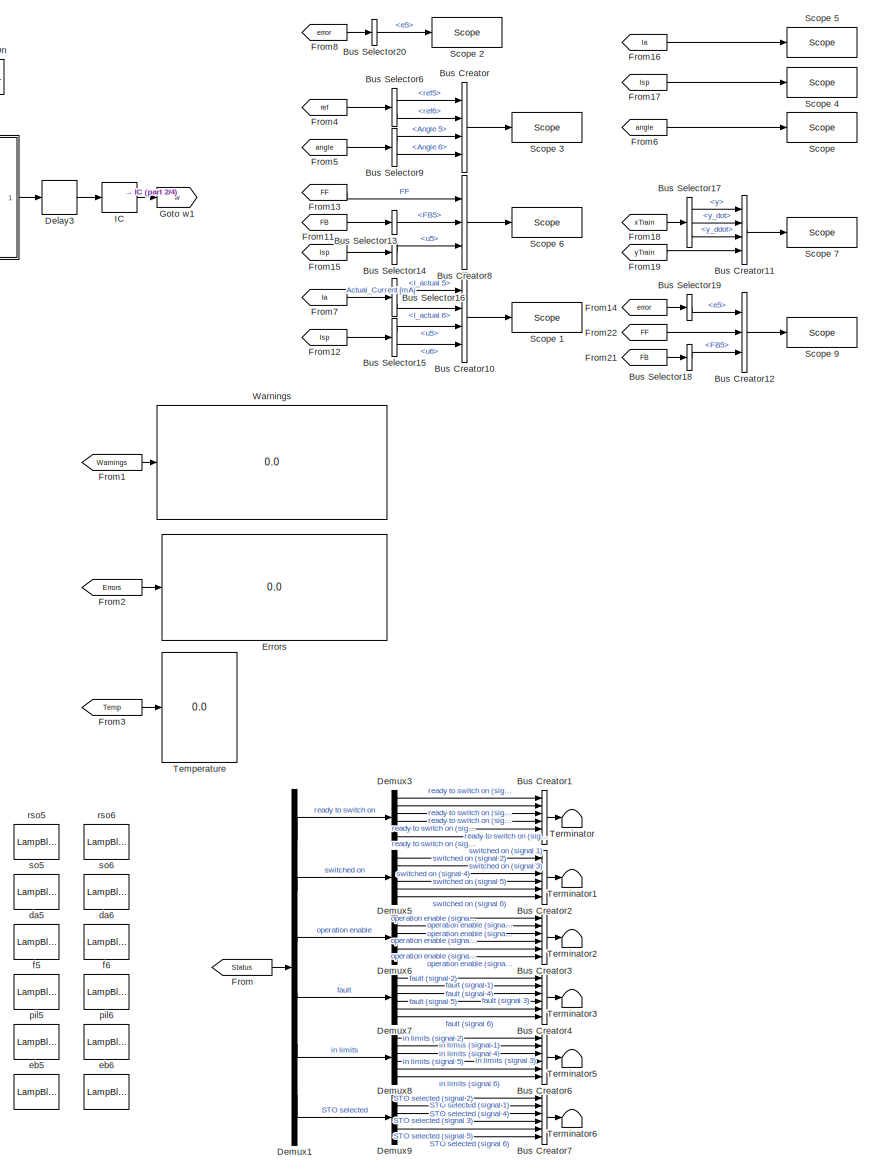
[diagram: root canvas - part 1/4, right side, full height]
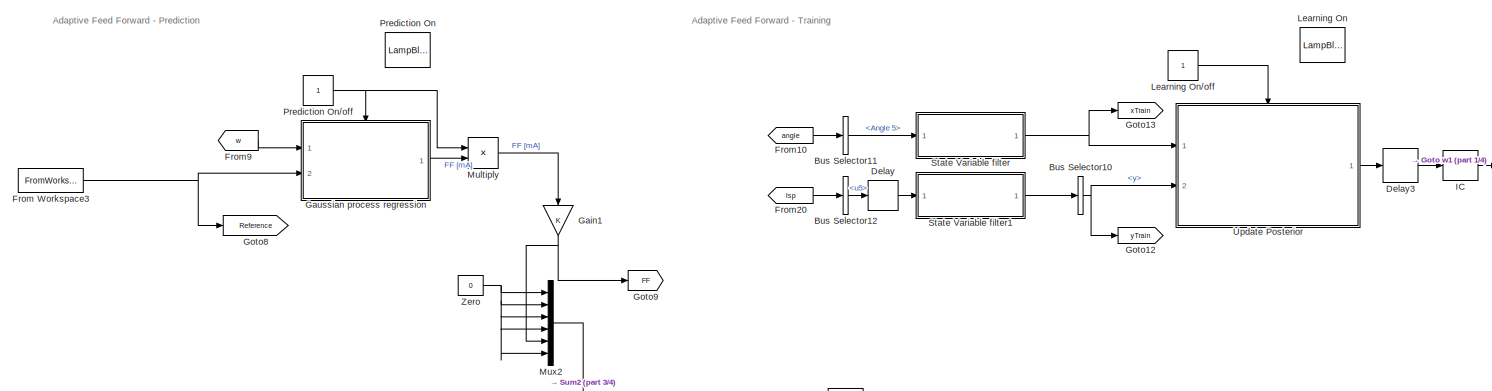
[diagram: root canvas - part 2/4, top center region]
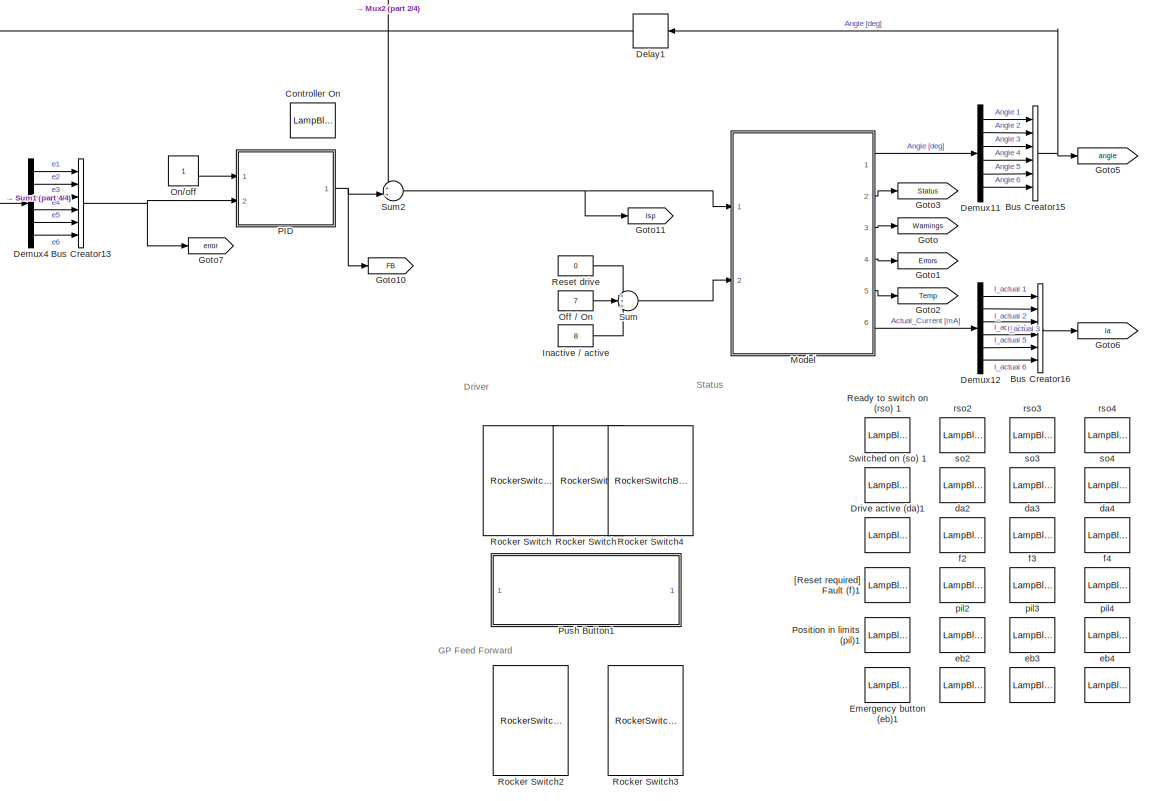
[diagram: root canvas - part 3/4, bottom center region]
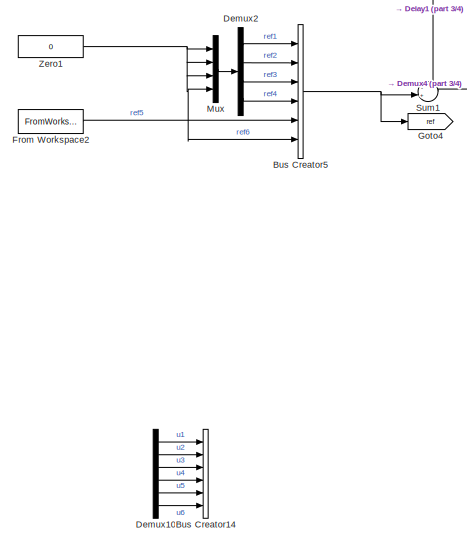
[diagram: root canvas - part 4/4, middle left region]
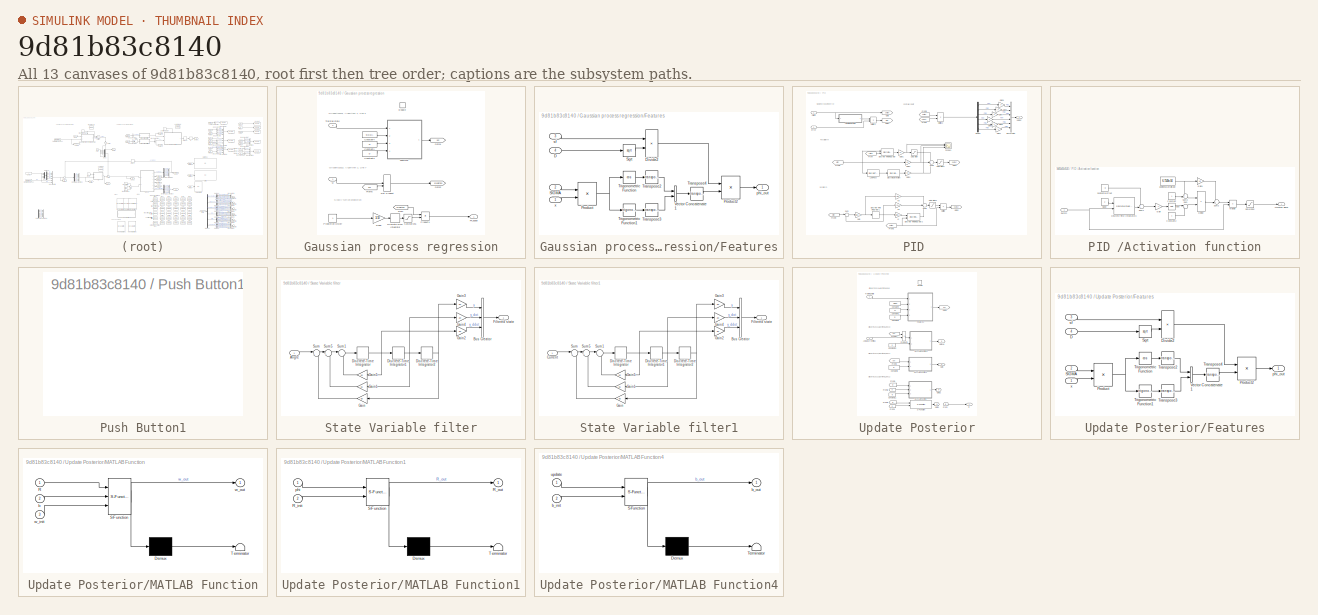
[diagram: thumbnail index - all 13 canvases of the model, root first then tree order]
MODEL slx_9d81b83c8140
KIND model
CONFIG AbsTol = auto
CONFIG EnableMultiTasking = off
CONFIG FixedStep = ts
CONFIG InitFcn = Ts = 0.001;
CONFIG MaxStep = auto
CONFIG MinStep = auto
CONFIG PreLoadFcn = Ts = 0.001;
CONFIG RelTol = 1e-3
CONFIG SampleTimeConstraint = Unconstrained
CONFIG Solver = FixedStepDiscrete
CONFIG SolverName = FixedStepDiscrete
CONFIG StartTime = 0.0
CONFIG StopTime = t_end
BLOCK [LampBlock]  da2 
  LabelPosition = Hide
  WebBlockId = 1372
BLOCK [LampBlock]  da4
  LabelPosition = Hide
  WebBlockId = 1373
BLOCK [LampBlock]  da5
  LabelPosition = Hide
  WebBlockId = 1374
BLOCK [LampBlock]  da6
  LabelPosition = Hide
  WebBlockId = 1375
BLOCK [LampBlock]  eb4
  LabelPosition = Hide
  WebBlockId = 1402
BLOCK [LampBlock]  eb5
  LabelPosition = Hide
  WebBlockId = 1403
BLOCK [LampBlock]  eb6
  LabelPosition = Hide
  WebBlockId = 1404
BLOCK [LampBlock]  f4
  LabelPosition = Hide
  WebBlockId = 1379
BLOCK [LampBlock]  f5
  LabelPosition = Hide
  WebBlockId = 1380
BLOCK [LampBlock]  f6
  LabelPosition = Hide
  WebBlockId = 1381
BLOCK [LampBlock]  pil4
  LabelPosition = Hide
  WebBlockId = 1397
BLOCK [LampBlock]  pil5
  LabelPosition = Hide
  WebBlockId = 1398
BLOCK [LampBlock]  pil6
  LabelPosition = Hide
  WebBlockId = 1399
BLOCK [LampBlock]  rso4
  LabelPosition = Hide
  WebBlockId = 1325
BLOCK [LampBlock]  so2 
  LabelPosition = Hide
  WebBlockId = 1336
BLOCK [LampBlock]  so4
  LabelPosition = Hide
  WebBlockId = 1333
BLOCK [LampBlock]  so5
  LabelPosition = Hide
  WebBlockId = 1334
BLOCK [LampBlock]  so6
  LabelPosition = Hide
  WebBlockId = 1335
BLOCK [BusCreator] Bus Creator
  DisplayOption = bar
  InheritFromInputs = on
  Inputs = 4
  Ports = [4, 1]
BLOCK [BusCreator] Bus Creator1
  DisplayOption = bar
  InheritFromInputs = on
  Inputs = 6
  Ports = [6, 1]
BLOCK [BusCreator] Bus Creator10
  DisplayOption = bar
  InheritFromInputs = on
  Inputs = 4
  Ports = [4, 1]
BLOCK [BusCreator] Bus Creator11
  DisplayOption = bar
  InheritFromInputs = on
  Inputs = 4
  Ports = [4, 1]
BLOCK [BusCreator] Bus Creator12
  DisplayOption = bar
  InheritFromInputs = on
  Inputs = 3
  Ports = [3, 1]
BLOCK [BusCreator] Bus Creator13
  DisplayOption = bar
  InheritFromInputs = on
  Inputs = 6
  Ports = [6, 1]
BLOCK [BusCreator] Bus Creator14
  DisplayOption = bar
  InheritFromInputs = on
  Inputs = 6
  Ports = [6, 1]
BLOCK [BusCreator] Bus Creator15
  DisplayOption = bar
  InheritFromInputs = on
  Inputs = 6
  Ports = [6, 1]
BLOCK [BusCreator] Bus Creator16
  DisplayOption = bar
  InheritFromInputs = on
  Inputs = 6
  Ports = [6, 1]
BLOCK [BusCreator] Bus Creator2
  DisplayOption = bar
  InheritFromInputs = on
  Inputs = 6
  Ports = [6, 1]
BLOCK [BusCreator] Bus Creator3
  DisplayOption = bar
  InheritFromInputs = on
  Inputs = 6
  Ports = [6, 1]
BLOCK [BusCreator] Bus Creator4
  DisplayOption = bar
  InheritFromInputs = on
  Inputs = 6
  Ports = [6, 1]
BLOCK [BusCreator] Bus Creator5
  DisplayOption = bar
  InheritFromInputs = on
  Inputs = 6
  Ports = [6, 1]
BLOCK [BusCreator] Bus Creator6
  DisplayOption = bar
  InheritFromInputs = on
  Inputs = 6
  Ports = [6, 1]
BLOCK [BusCreator] Bus Creator7
  DisplayOption = bar
  InheritFromInputs = on
  Inputs = 6
  Ports = [6, 1]
BLOCK [BusCreator] Bus Creator8
  DisplayOption = bar
  InheritFromInputs = on
  Inputs = 3
  Ports = [3, 1]
BLOCK [BusSelector] Bus Selector10
  OutputAsBus = off
  OutputSignals = y
  Ports = [1, 1]
BLOCK [BusSelector] Bus Selector11
  OutputAsBus = off
  OutputSignals = Angle 5
  Ports = [1, 1]
BLOCK [BusSelector] Bus Selector12
  OutputAsBus = off
  OutputSignals = u5
  Ports = [1, 1]
BLOCK [BusSelector] Bus Selector13
  OutputAsBus = off
  OutputSignals = FB5
  Ports = [1, 1]
BLOCK [BusSelector] Bus Selector14
  OutputAsBus = off
  OutputSignals = u5
  Ports = [1, 1]
BLOCK [BusSelector] Bus Selector15
  OutputAsBus = off
  OutputSignals = u5,u6
  Ports = [1, 2]
BLOCK [BusSelector] Bus Selector16
  OutputAsBus = off
  OutputSignals = I_actual 5,I_actual 6
  Ports = [1, 2]
BLOCK [BusSelector] Bus Selector17
  OutputAsBus = off
  OutputSignals = y,y_dot,y_ddot
  Ports = [1, 3]
BLOCK [BusSelector] Bus Selector18
  OutputAsBus = off
  OutputSignals = FB5
  Ports = [1, 1]
BLOCK [BusSelector] Bus Selector19
  OutputAsBus = off
  OutputSignals = e5
  Ports = [1, 1]
BLOCK [BusSelector] Bus Selector20
  OutputAsBus = off
  OutputSignals = e5
  Ports = [1, 1]
BLOCK [BusSelector] Bus Selector6
  OutputAsBus = off
  OutputSignals = ref5,ref6
  Ports = [1, 2]
BLOCK [BusSelector] Bus Selector9
  OutputAsBus = off
  OutputSignals = Angle 5,Angle 6
  Ports = [1, 2]
BLOCK [LampBlock] Controller On 
  LabelPosition = Hide
  WebBlockId = 1976
BLOCK [Delay] Delay
  DelayLength = 3
  InputPortMap = u0
  Ports = [1, 1]
BLOCK [Delay] Delay1
  DelayLength = 1
  InputPortMap = u0
  Ports = [1, 1]
BLOCK [Delay] Delay3
  DelayLength = 1
  InitialCondition = 0
  InputPortMap = u0
  Ports = [1, 1]
BLOCK [Demux] Demux1
  DisplayOption = bar
  Outputs = 6
  Ports = [1, 6]
BLOCK [Demux] Demux10
  DisplayOption = bar
  Outputs = 6
  Ports = [1, 6]
BLOCK [Demux] Demux11
  DisplayOption = bar
  Outputs = 6
  Ports = [1, 6]
BLOCK [Demux] Demux12
  DisplayOption = bar
  Outputs = 6
  Ports = [1, 6]
BLOCK [Demux] Demux2
  DisplayOption = bar
  Ports = [1, 4]
BLOCK [Demux] Demux3
  DisplayOption = bar
  Outputs = 6
  Ports = [1, 6]
BLOCK [Demux] Demux4
  DisplayOption = bar
  Outputs = 6
  Ports = [1, 6]
BLOCK [Demux] Demux5
  DisplayOption = bar
  Outputs = 6
  Ports = [1, 6]
BLOCK [Demux] Demux6
  DisplayOption = bar
  Outputs = 6
  Ports = [1, 6]
BLOCK [Demux] Demux7
  DisplayOption = bar
  Outputs = 6
  Ports = [1, 6]
BLOCK [Demux] Demux8
  DisplayOption = bar
  Outputs = 6
  Ports = [1, 6]
BLOCK [Demux] Demux9
  DisplayOption = bar
  Outputs = 6
  Ports = [1, 6]
BLOCK [LampBlock] Drive active (da)1
  LabelPosition = Hide
  WebBlockId = 1376
BLOCK [LampBlock] Emergency button (eb)1
  LabelPosition = Hide
  WebBlockId = 1405
BLOCK [Display] Errors
  Decimation = 25
  Ports = [1]
BLOCK [From] From
  GotoTag = Status
BLOCK [FromWorkspace] From Workspace2
  OutputAfterFinalValue = Setting to zero
  SampleTime = ts
  VariableName = skewSine
  ZeroCross = on
BLOCK [FromWorkspace] From Workspace3
  OutputAfterFinalValue = Setting to zero
  SampleTime = ts
  VariableName = skewSineFF
  ZeroCross = on
BLOCK [From] From1
  GotoTag = Warnings
BLOCK [From] From10
  GotoTag = angle
BLOCK [From] From11
  GotoTag = FB
BLOCK [From] From12
  GotoTag = Isp
BLOCK [From] From13
  GotoTag = FF
BLOCK [From] From14
  GotoTag = error
BLOCK [From] From15
  GotoTag = Isp
BLOCK [From] From16
  Commented = on
  GotoTag = Ia
BLOCK [From] From17
  Commented = on
  GotoTag = Isp
BLOCK [From] From18
  GotoTag = xTrain
BLOCK [From] From19
  GotoTag = yTrain
BLOCK [From] From2
  GotoTag = Errors
BLOCK [From] From20
  GotoTag = Isp
BLOCK [From] From21
  GotoTag = FB
BLOCK [From] From22
  GotoTag = FF
BLOCK [From] From3
  GotoTag = Temp
BLOCK [From] From4
  GotoTag = ref
BLOCK [From] From5
  GotoTag = angle
BLOCK [From] From6
  Commented = on
  GotoTag = angle
BLOCK [From] From7
  GotoTag = Ia
BLOCK [From] From8
  GotoTag = error
BLOCK [From] From9
  GotoTag = w
BLOCK [Gain] Gain1
  OutDataTypeStr = Inherit: Inherit via internal rule
  ParamDataTypeStr = Inherit: Inherit via internal rule
  SaturateOnIntegerOverflow = off
BLOCK [SubSystem] Gaussian process regression
  Ports = [2, 1, 1]
  RequestExecContextInheritance = off
BLOCK [Constant] Gaussian process regression/Constant1
  Value = sf
  VectorParams1D = off
BLOCK [Constant] Gaussian process regression/Constant3
  Value = D
  VectorParams1D = off
BLOCK [Constant] Gaussian process regression/Constant4
  Value = SIGMA
  VectorParams1D = off
BLOCK [DiscreteIntegrator] Gaussian process regression/Discrete-Time Integrator
  ICPrevOutput = DiscIntNeverNeededParam
  ICPrevScaledInput = DiscIntNeverNeededParam
  InitialConditionSetting = Auto
  Ports = [1, 1]
  SampleTime = -1
BLOCK [DotProduct] Gaussian process regression/Dot Product
  InputSameDT = off
  OutDataTypeStr = Inherit: Inherit via internal rule
BLOCK [EnablePort] Gaussian process regression/Enable
  Ports = []
  StatesWhenEnabling = reset
BLOCK [Outport] Gaussian process regression/FF_adapt
  IconDisplay = Port number
  SampleTime = ts
BLOCK [SubSystem] Gaussian process regression/Features
  Ports = [4, 1]
  RequestExecContextInheritance = off
BLOCK [Inport] Gaussian process regression/Features/D
  IconDisplay = Port number
  Port = 4
BLOCK [Product] Gaussian process regression/Features/Divide2
  InputSameDT = off
  Inputs = */
  OutDataTypeStr = Inherit: Inherit via internal rule
  Ports = [2, 1]
  RndMeth = Floor
  SaturateOnIntegerOverflow = off
BLOCK [Product] Gaussian process regression/Features/Product
  InputSameDT = off
  Multiplication = Matrix(*)
  OutDataTypeStr = Inherit: Inherit via internal rule
  Ports = [2, 1]
  RndMeth = Floor
  SaturateOnIntegerOverflow = off
BLOCK [Product] Gaussian process regression/Features/Product2
  InputSameDT = off
  OutDataTypeStr = Inherit: Inherit via internal rule
  Ports = [2, 1]
  RndMeth = Floor
  SaturateOnIntegerOverflow = off
BLOCK [Inport] Gaussian process regression/Features/SIGMA
  IconDisplay = Port number
  Port = 2
BLOCK [Sqrt] Gaussian process regression/Features/Sqrt
BLOCK [Math] Gaussian process regression/Features/Transpose2
  Operator = transpose
  Ports = [1, 1]
BLOCK [Math] Gaussian process regression/Features/Transpose3
  Operator = transpose
  Ports = [1, 1]
BLOCK [Math] Gaussian process regression/Features/Transpose4
  Operator = transpose
  Ports = [1, 1]
BLOCK [Trigonometry] Gaussian process regression/Features/Trigonometric Function
  Operator = cos
  Ports = [1, 1]
BLOCK [Trigonometry] Gaussian process regression/Features/Trigonometric Function1
  Ports = [1, 1]
BLOCK [Concatenate] Gaussian process regression/Features/Vector Concatenate1
  Ports = [2, 1]
BLOCK [Outport] Gaussian process regression/Features/phi_out
  IconDisplay = Port number
BLOCK [Inport] Gaussian process regression/Features/sf
  IconDisplay = Port number
  Port = 3
BLOCK [Inport] Gaussian process regression/Features/x
  IconDisplay = Port number
BLOCK [From] Gaussian process regression/From
  GotoTag = prediction
BLOCK [From] Gaussian process regression/From5
  GotoTag = phi
BLOCK [Goto] Gaussian process regression/Goto1
  GotoTag = phi
BLOCK [Goto] Gaussian process regression/Goto2
  GotoTag = prediction
BLOCK [Constant] Gaussian process regression/Prediction On//off
BLOCK [Product] Gaussian process regression/Product1
  InputSameDT = off
  OutDataTypeStr = Inherit: Inherit via internal rule
  Ports = [2, 1]
  RndMeth = Floor
  SaturateOnIntegerOverflow = off
BLOCK [Saturate] Gaussian process regression/Saturation1
  InputPortMap = u0
  LowerLimit = 0
  Ports = [1, 1]
  UpperLimit = 1
BLOCK [Inport] Gaussian process regression/Training state
  IconDisplay = Port number
  Port = 2
BLOCK [Gain] Gaussian process regression/slope
  Gain = 1/10
  OutDataTypeStr = Inherit: Inherit via internal rule
  ParamDataTypeStr = Inherit: Inherit via internal rule
  SaturateOnIntegerOverflow = off
BLOCK [Inport] Gaussian process regression/w
  IconDisplay = Port number
BLOCK [Goto] Goto
  GotoTag = Warnings
BLOCK [Goto] Goto w1
  GotoTag = w
BLOCK [Goto] Goto1
  GotoTag = Errors
BLOCK [Goto] Goto10
  GotoTag = FB
BLOCK [Goto] Goto11
  GotoTag = Isp
BLOCK [Goto] Goto12
  GotoTag = yTrain
BLOCK [Goto] Goto13
  GotoTag = xTrain
BLOCK [Goto] Goto2
  GotoTag = Temp
BLOCK [Goto] Goto3
  GotoTag = Status
BLOCK [Goto] Goto4
  GotoTag = ref
BLOCK [Goto] Goto5
  GotoTag = angle
BLOCK [Goto] Goto6
  GotoTag = Ia
BLOCK [Goto] Goto7
  GotoTag = error
BLOCK [Goto] Goto8
  GotoTag = Reference
BLOCK [Goto] Goto9
  GotoTag = FF
BLOCK [InitialCondition] IC
  Value = w
BLOCK [Constant] Inactive // active
  SampleTime = -1
  Value = 8
BLOCK [LampBlock] Learning On
  LabelPosition = Hide
  WebBlockId = 2313
BLOCK [Constant] Learning On//off
  SampleTime = ts
BLOCK [ModelReference] Model
  ModelNameDialog = TflexDriver
  ModelReferenceVersion = 1.18
  Ports = [2, 6]
BLOCK [Product] Multiply
  InputSameDT = off
  OutDataTypeStr = Inherit: Inherit via internal rule
  Ports = [2, 1]
  RndMeth = Floor
  SaturateOnIntegerOverflow = off
BLOCK [Mux] Mux
  DisplayOption = bar
  Ports = [4, 1]
BLOCK [Mux] Mux2
  DisplayOption = bar
  Inputs = 6
  Ports = [6, 1]
BLOCK [Constant] Off // On
  SampleTime = -1
  Value = 7
BLOCK [Constant] On//off
  SampleTime = ts
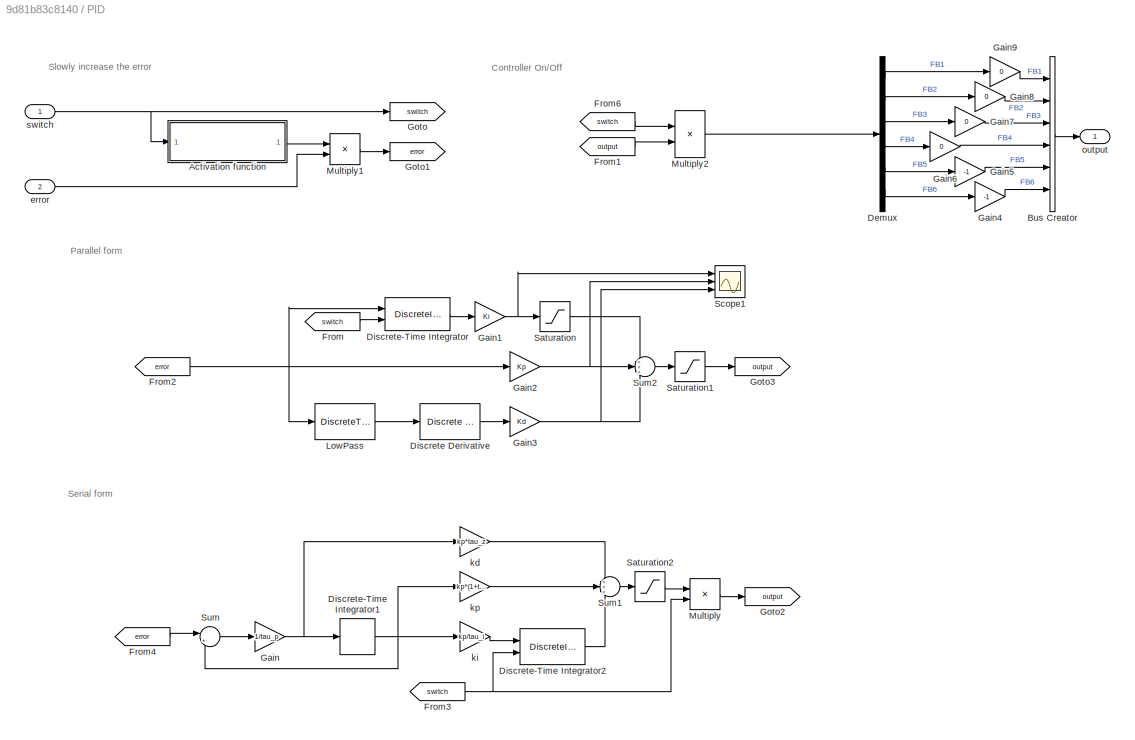
BLOCK [SubSystem] PID 
  Ports = [2, 1]
  RequestExecContextInheritance = off
BLOCK [SubSystem] PID /Activation function
  Ports = [1, 1]
  RequestExecContextInheritance = off
BLOCK [Outport] PID /Activation function/Activation Signal
  IconDisplay = Port number
BLOCK [Constant] PID /Activation function/Constant
BLOCK [Constant] PID /Activation function/Constant2
BLOCK [DiscreteIntegrator] PID /Activation function/Discrete-Time Integrator3
  ExternalReset = rising
  ICPrevOutput = DiscIntNeverNeededParam
  ICPrevScaledInput = DiscIntNeverNeededParam
  InitialConditionSetting = Auto
  IntegratorMethod = Integration: Trapezoidal
  LowerSaturationLimit = 0
  Ports = [2, 1]
  SampleTime = -1
  UpperSaturationLimit = 1
BLOCK [Product] PID /Activation function/Divide
  InputSameDT = off
  Inputs = */
  OutDataTypeStr = Inherit: Inherit via internal rule
  Ports = [2, 1]
  RndMeth = Floor
  SaturateOnIntegerOverflow = off
BLOCK [Math] PID /Activation function/Exp
  Ports = [1, 1]
BLOCK [Gain] PID /Activation function/Gain
  Gain = -1
  OutDataTypeStr = Inherit: Inherit via internal rule
  ParamDataTypeStr = Inherit: Inherit via internal rule
  SaturateOnIntegerOverflow = off
BLOCK [Gain] PID /Activation function/Gain1
  Gain = 1/2
  OutDataTypeStr = Inherit: Inherit via internal rule
  ParamDataTypeStr = Inherit: Inherit via internal rule
  SaturateOnIntegerOverflow = off
BLOCK [Product] PID /Activation function/Multiply
  InputSameDT = off
  OutDataTypeStr = Inherit: Inherit via internal rule
  Ports = [2, 1]
  RndMeth = Floor
  SaturateOnIntegerOverflow = off
BLOCK [Saturate] PID /Activation function/Saturation
  InputPortMap = u0
  LowerLimit = 0
  Ports = [1, 1]
  UpperLimit = 1
BLOCK [Sum] PID /Activation function/Sum
  IconShape = round
  InputSameDT = off
  Inputs = |++
  OutDataTypeStr = Inherit: Inherit via internal rule
  Ports = [2, 1]
  SaturateOnIntegerOverflow = off
BLOCK [Sum] PID /Activation function/Sum1
  IconShape = round
  InputSameDT = off
  Inputs = ++|
  OutDataTypeStr = Inherit: Inherit via internal rule
  Ports = [2, 1]
  SaturateOnIntegerOverflow = off
BLOCK [Sum] PID /Activation function/Sum2
  IconShape = round
  InputSameDT = off
  Inputs = -+|
  OutDataTypeStr = Inherit: Inherit via internal rule
  Ports = [2, 1]
  SaturateOnIntegerOverflow = off
BLOCK [Sum] PID /Activation function/Sum3
  IconShape = round
  InputSameDT = off
  Inputs = ++|
  OutDataTypeStr = Inherit: Inherit via internal rule
  Ports = [2, 1]
  SaturateOnIntegerOverflow = off
BLOCK [Inport] PID /Activation function/Switch
  IconDisplay = Port number
BLOCK [Constant] PID /Activation function/additional amplitude
  Value = 6.7140e-04
BLOCK [Constant] PID /Activation function/horizontal offset
  Value = -8
BLOCK [Constant] PID /Activation function/slope
  Value = 2
BLOCK [BusCreator] PID /Bus Creator
  DisplayOption = bar
  InheritFromInputs = on
  Inputs = 6
  Ports = [6, 1]
BLOCK [Demux] PID /Demux
  DisplayOption = bar
  Outputs = 6
  Ports = [1, 6]
BLOCK [Reference] PID /Discrete Derivative  REF=simulink/Discrete/Discrete Derivative
  Commented = on
  Ports = [1, 1]
  SourceBlock = simulink/Discrete/Discrete Derivative
  SourceProductBaseCode = SL
  SourceProductName = Simulink
  SourceType = Discrete Derivative
BLOCK [DiscreteIntegrator] PID /Discrete-Time Integrator
  Commented = on
  ExternalReset = either
  ICPrevOutput = DiscIntNeverNeededParam
  ICPrevScaledInput = DiscIntNeverNeededParam
  InitialConditionSetting = Auto
  IntegratorMethod = Integration: Trapezoidal
  LimitOutput = on
  LowerSaturationLimit = I_limit_min
  Ports = [2, 1]
  SampleTime = ts
  UpperSaturationLimit = I_limit_max
BLOCK [DiscreteIntegrator] PID /Discrete-Time Integrator1
  ICPrevOutput = DiscIntNeverNeededParam
  ICPrevScaledInput = DiscIntNeverNeededParam
  InitialConditionSetting = Auto
  Ports = [1, 1]
  SampleTime = -1
BLOCK [DiscreteIntegrator] PID /Discrete-Time Integrator2
  ExternalReset = rising
  ICPrevOutput = DiscIntNeverNeededParam
  ICPrevScaledInput = DiscIntNeverNeededParam
  InitialConditionSetting = Auto
  IntegratorMethod = Integration: Trapezoidal
  LimitOutput = on
  LowerSaturationLimit = I_limit_min
  Ports = [2, 1]
  SampleTime = ts
  UpperSaturationLimit = I_limit_max
BLOCK [From] PID /From
  Commented = on
  GotoTag = switch
BLOCK [From] PID /From1
  GotoTag = output
BLOCK [From] PID /From2
  Commented = on
  GotoTag = error
BLOCK [From] PID /From3
  GotoTag = switch
BLOCK [From] PID /From4
  GotoTag = error
BLOCK [From] PID /From6
  GotoTag = switch
BLOCK [Gain] PID /Gain
  Gain = 1/tau_p
  OutDataTypeStr = Inherit: Inherit via internal rule
  ParamDataTypeStr = Inherit: Inherit via internal rule
  SaturateOnIntegerOverflow = off
BLOCK [Gain] PID /Gain1
  Commented = on
  Gain = Ki
  OutDataTypeStr = Inherit: Inherit via internal rule
  ParamDataTypeStr = Inherit: Inherit via internal rule
  SaturateOnIntegerOverflow = off
BLOCK [Gain] PID /Gain2
  Commented = on
  Gain = Kp
  OutDataTypeStr = Inherit: Inherit via internal rule
  ParamDataTypeStr = Inherit: Inherit via internal rule
  SaturateOnIntegerOverflow = off
BLOCK [Gain] PID /Gain3
  Commented = on
  Gain = Kd
  OutDataTypeStr = Inherit: Inherit via internal rule
  ParamDataTypeStr = Inherit: Inherit via internal rule
  SaturateOnIntegerOverflow = off
BLOCK [Gain] PID /Gain4
  Gain = -1
  OutDataTypeStr = Inherit: Inherit via internal rule
  ParamDataTypeStr = Inherit: Inherit via internal rule
  SaturateOnIntegerOverflow = off
BLOCK [Gain] PID /Gain5
  Gain = -1
  OutDataTypeStr = Inherit: Inherit via internal rule
  ParamDataTypeStr = Inherit: Inherit via internal rule
  SaturateOnIntegerOverflow = off
BLOCK [Gain] PID /Gain6
  Gain = 0
  OutDataTypeStr = Inherit: Inherit via internal rule
  ParamDataTypeStr = Inherit: Inherit via internal rule
  SaturateOnIntegerOverflow = off
BLOCK [Gain] PID /Gain7
  Gain = 0
  OutDataTypeStr = Inherit: Inherit via internal rule
  ParamDataTypeStr = Inherit: Inherit via internal rule
  SaturateOnIntegerOverflow = off
BLOCK [Gain] PID /Gain8
  Gain = 0
  OutDataTypeStr = Inherit: Inherit via internal rule
  ParamDataTypeStr = Inherit: Inherit via internal rule
  SaturateOnIntegerOverflow = off
BLOCK [Gain] PID /Gain9
  Gain = 0
  OutDataTypeStr = Inherit: Inherit via internal rule
  ParamDataTypeStr = Inherit: Inherit via internal rule
  SaturateOnIntegerOverflow = off
BLOCK [Goto] PID /Goto
  GotoTag = switch
BLOCK [Goto] PID /Goto1
  GotoTag = error
BLOCK [Goto] PID /Goto2
  GotoTag = output
BLOCK [Goto] PID /Goto3
  Commented = on
  GotoTag = output
BLOCK [DiscreteTransferFcn] PID /LowPass
  Commented = on
  Denominator = LPden
  InputPortMap = u0
  Numerator = LPnum
  Ports = [1, 1]
BLOCK [Product] PID /Multiply
  InputSameDT = off
  OutDataTypeStr = Inherit: Inherit via internal rule
  Ports = [2, 1]
  RndMeth = Floor
  SaturateOnIntegerOverflow = off
BLOCK [Product] PID /Multiply1
  InputSameDT = off
  OutDataTypeStr = Inherit: Inherit via internal rule
  Ports = [2, 1]
  RndMeth = Floor
  SaturateOnIntegerOverflow = off
BLOCK [Product] PID /Multiply2
  InputSameDT = off
  OutDataTypeStr = Inherit: Inherit via internal rule
  Ports = [2, 1]
  RndMeth = Floor
  SaturateOnIntegerOverflow = off
BLOCK [Saturate] PID /Saturation
  Commented = on
  InputPortMap = u0
  LowerLimit = I_limit_min
  Ports = [1, 1]
  UpperLimit = I_limit_max
BLOCK [Saturate] PID /Saturation1
  Commented = on
  InputPortMap = u0
  LowerLimit = I_limit_min
  Ports = [1, 1]
  UpperLimit = I_limit_max
BLOCK [Saturate] PID /Saturation2
  InputPortMap = u0
  LowerLimit = I_limit_min
  Ports = [1, 1]
  UpperLimit = I_limit_max
BLOCK [Scope] PID /Scope1
  Commented = on
  Floating = off
  NumInputPorts = 3
  Ports = [3]
  ScopeSpecificationString = Simulink.scopes.TimeScopeBlockCfg('CurrentConfiguration', extmgr.ConfigurationSet(extmgr.Configuration('Core','General UI',true),extmgr.Configuration('Core','Source UI',true),extmgr.Configuration('Sources','WiredSimulink',true,'DataLoggingVariableName','ScopeData2'),extmgr.Configuration('Visuals','Time Domain',true,'SerializedDisplays',{struct('MinYLimReal','-1706618.93865','MaxYLimReal','1470835....<+1629ch>
BLOCK [Sum] PID /Sum
  IconShape = round
  InputSameDT = off
  Inputs = |+-
  OutDataTypeStr = Inherit: Inherit via internal rule
  Ports = [2, 1]
  SaturateOnIntegerOverflow = off
BLOCK [Sum] PID /Sum1
  IconShape = round
  InputSameDT = off
  Inputs = +++
  OutDataTypeStr = Inherit: Inherit via internal rule
  Ports = [3, 1]
  SaturateOnIntegerOverflow = off
BLOCK [Sum] PID /Sum2
  Commented = on
  IconShape = round
  InputSameDT = off
  Inputs = +++
  OutDataTypeStr = Inherit: Inherit via internal rule
  Ports = [3, 1]
  SaturateOnIntegerOverflow = off
BLOCK [Inport] PID /error
  IconDisplay = Port number
  Port = 2
BLOCK [Gain] PID /kd
  Gain = kp*tau_z
  OutDataTypeStr = Inherit: Inherit via internal rule
  ParamDataTypeStr = Inherit: Inherit via internal rule
  SaturateOnIntegerOverflow = off
BLOCK [Gain] PID /ki
  Gain = kp/tau_i
  OutDataTypeStr = Inherit: Inherit via internal rule
  ParamDataTypeStr = Inherit: Inherit via internal rule
  SaturateOnIntegerOverflow = off
BLOCK [Gain] PID /kp
  Gain = kp*(1+tau_z/tau_i)
  OutDataTypeStr = Inherit: Inherit via internal rule
  ParamDataTypeStr = Inherit: Inherit via internal rule
  SaturateOnIntegerOverflow = off
BLOCK [Outport] PID /output
  IconDisplay = Port number
BLOCK [Inport] PID /switch
  IconDisplay = Port number
  SampleTime = ts
BLOCK [LampBlock] Position in limits (pil)1
  LabelPosition = Hide
  WebBlockId = 1400
BLOCK [LampBlock] Prediction On 
  LabelPosition = Hide
  WebBlockId = 2312
BLOCK [Constant] Prediction On//off
  SampleTime = ts
BLOCK [SubSystem] Push Button1
  DialogController = hmiCreateDDGDialog
  IsWebBlock = on
  Ports = []
  RequestExecContextInheritance = off
BLOCK [LampBlock] Ready to switch on (rso) 1
  LabelPosition = Hide
  WebBlockId = 226
BLOCK [Constant] Reset drive
  SampleTime = -1
  Value = 0
BLOCK [RockerSwitchBlock] Rocker Switch
  LabelPosition = Hide
  WebBlockId = 231
BLOCK [RockerSwitchBlock] Rocker Switch1
  LabelPosition = Hide
  WebBlockId = 232
BLOCK [RockerSwitchBlock] Rocker Switch2
  LabelPosition = Hide
  WebBlockId = 2309
BLOCK [RockerSwitchBlock] Rocker Switch3
  LabelPosition = Hide
  WebBlockId = 2310
BLOCK [RockerSwitchBlock] Rocker Switch4
  LabelPosition = Hide
  WebBlockId = 1973
BLOCK [Reference] Scope   REF=slrtlib/Displays and
Logging/Scope 
  Commented = on
  Ports = [1]
  SourceBlock = slrtlib/Displays and\nLogging/Scope
  SourceProductBaseCode = XP
  SourceProductName = Simulink Real-Time
  SourceType = xpcscopeblock
BLOCK [Reference] Scope 1  REF=slrtlib/Displays and
Logging/Scope 
  Ports = [1]
  SourceBlock = slrtlib/Displays and\nLogging/Scope
  SourceProductBaseCode = XP
  SourceProductName = Simulink Real-Time
  SourceType = xpcscopeblock
BLOCK [Reference] Scope 2  REF=slrtlib/Displays and
Logging/Scope 
  Ports = [1]
  SourceBlock = slrtlib/Displays and\nLogging/Scope
  SourceProductBaseCode = XP
  SourceProductName = Simulink Real-Time
  SourceType = xpcscopeblock
BLOCK [Reference] Scope 3  REF=slrtlib/Displays and
Logging/Scope 
  Ports = [1]
  SourceBlock = slrtlib/Displays and\nLogging/Scope
  SourceProductBaseCode = XP
  SourceProductName = Simulink Real-Time
  SourceType = xpcscopeblock
BLOCK [Reference] Scope 4  REF=slrtlib/Displays and
Logging/Scope 
  Commented = on
  Ports = [1]
  SourceBlock = slrtlib/Displays and\nLogging/Scope
  SourceProductBaseCode = XP
  SourceProductName = Simulink Real-Time
  SourceType = xpcscopeblock
BLOCK [Reference] Scope 5  REF=slrtlib/Displays and
Logging/Scope 
  Commented = on
  Ports = [1]
  SourceBlock = slrtlib/Displays and\nLogging/Scope
  SourceProductBaseCode = XP
  SourceProductName = Simulink Real-Time
  SourceType = xpcscopeblock
BLOCK [Reference] Scope 6  REF=slrtlib/Displays and
Logging/Scope 
  Ports = [1]
  SourceBlock = slrtlib/Displays and\nLogging/Scope
  SourceProductBaseCode = XP
  SourceProductName = Simulink Real-Time
  SourceType = xpcscopeblock
BLOCK [Reference] Scope 7  REF=slrtlib/Displays and
Logging/Scope 
  Ports = [1]
  SourceBlock = slrtlib/Displays and\nLogging/Scope
  SourceProductBaseCode = XP
  SourceProductName = Simulink Real-Time
  SourceType = xpcscopeblock
BLOCK [Reference] Scope 9  REF=slrtlib/Displays and
Logging/Scope 
  Ports = [1]
  SourceBlock = slrtlib/Displays and\nLogging/Scope
  SourceProductBaseCode = XP
  SourceProductName = Simulink Real-Time
  SourceType = xpcscopeblock
BLOCK [SubSystem] State Variable filter
  Ports = [1, 1]
  RequestExecContextInheritance = off
BLOCK [Inport] State Variable filter/Angle
  IconDisplay = Port number
BLOCK [BusCreator] State Variable filter/Bus Creator
  DisplayOption = bar
  InheritFromInputs = on
  Inputs = 3
  Ports = [3, 1]
BLOCK [DiscreteIntegrator] State Variable filter/Discrete-Time Integrator
  ICPrevOutput = DiscIntNeverNeededParam
  ICPrevScaledInput = DiscIntNeverNeededParam
  InitialConditionSetting = Auto
  Ports = [1, 1]
  SampleTime = -1
BLOCK [DiscreteIntegrator] State Variable filter/Discrete-Time Integrator1
  ICPrevOutput = DiscIntNeverNeededParam
  ICPrevScaledInput = DiscIntNeverNeededParam
  InitialConditionSetting = Auto
  Ports = [1, 1]
  SampleTime = -1
BLOCK [DiscreteIntegrator] State Variable filter/Discrete-Time Integrator2
  ICPrevOutput = DiscIntNeverNeededParam
  ICPrevScaledInput = DiscIntNeverNeededParam
  InitialConditionSetting = Auto
  Ports = [1, 1]
  SampleTime = -1
BLOCK [Outport] State Variable filter/Filtered state
  IconDisplay = Port number
BLOCK [Gain] State Variable filter/Gain
  Gain = a0
  OutDataTypeStr = Inherit: Inherit via internal rule
  ParamDataTypeStr = Inherit: Inherit via internal rule
  SaturateOnIntegerOverflow = off
BLOCK [Gain] State Variable filter/Gain1
  Gain = a1
  OutDataTypeStr = Inherit: Inherit via internal rule
  ParamDataTypeStr = Inherit: Inherit via internal rule
  SaturateOnIntegerOverflow = off
BLOCK [Gain] State Variable filter/Gain2
  Gain = a0
  OutDataTypeStr = Inherit: Inherit via internal rule
  ParamDataTypeStr = Inherit: Inherit via internal rule
  SaturateOnIntegerOverflow = off
BLOCK [Gain] State Variable filter/Gain3
  Gain = a0
  OutDataTypeStr = Inherit: Inherit via internal rule
  ParamDataTypeStr = Inherit: Inherit via internal rule
  SaturateOnIntegerOverflow = off
BLOCK [Gain] State Variable filter/Gain4
  Gain = a0
  OutDataTypeStr = Inherit: Inherit via internal rule
  ParamDataTypeStr = Inherit: Inherit via internal rule
  SaturateOnIntegerOverflow = off
BLOCK [Gain] State Variable filter/Gain5
  Gain = a2
  OutDataTypeStr = Inherit: Inherit via internal rule
  ParamDataTypeStr = Inherit: Inherit via internal rule
  SaturateOnIntegerOverflow = off
BLOCK [Sum] State Variable filter/Sum
  IconShape = round
  InputSameDT = off
  Inputs = |+-
  OutDataTypeStr = Inherit: Inherit via internal rule
  Ports = [2, 1]
  SaturateOnIntegerOverflow = off
BLOCK [Sum] State Variable filter/Sum1
  IconShape = round
  InputSameDT = off
  Inputs = |+-
  OutDataTypeStr = Inherit: Inherit via internal rule
  Ports = [2, 1]
  SaturateOnIntegerOverflow = off
BLOCK [Sum] State Variable filter/Sum5
  IconShape = round
  InputSameDT = off
  Inputs = |+-
  OutDataTypeStr = Inherit: Inherit via internal rule
  Ports = [2, 1]
  SaturateOnIntegerOverflow = off
BLOCK [SubSystem] State Variable filter1
  Ports = [1, 1]
  RequestExecContextInheritance = off
BLOCK [BusCreator] State Variable filter1/Bus Creator
  DisplayOption = bar
  InheritFromInputs = on
  Inputs = 3
  Ports = [3, 1]
BLOCK [Inport] State Variable filter1/Current
  IconDisplay = Port number
BLOCK [DiscreteIntegrator] State Variable filter1/Discrete-Time Integrator
  ICPrevOutput = DiscIntNeverNeededParam
  ICPrevScaledInput = DiscIntNeverNeededParam
  InitialConditionSetting = Auto
  Ports = [1, 1]
  SampleTime = -1
BLOCK [DiscreteIntegrator] State Variable filter1/Discrete-Time Integrator1
  ICPrevOutput = DiscIntNeverNeededParam
  ICPrevScaledInput = DiscIntNeverNeededParam
  InitialConditionSetting = Auto
  Ports = [1, 1]
  SampleTime = -1
BLOCK [DiscreteIntegrator] State Variable filter1/Discrete-Time Integrator2
  ICPrevOutput = DiscIntNeverNeededParam
  ICPrevScaledInput = DiscIntNeverNeededParam
  InitialConditionSetting = Auto
  Ports = [1, 1]
  SampleTime = -1
BLOCK [Outport] State Variable filter1/Filtered state
  IconDisplay = Port number
BLOCK [Gain] State Variable filter1/Gain
  Gain = a0
  OutDataTypeStr = Inherit: Inherit via internal rule
  ParamDataTypeStr = Inherit: Inherit via internal rule
  SaturateOnIntegerOverflow = off
BLOCK [Gain] State Variable filter1/Gain1
  Gain = a1
  OutDataTypeStr = Inherit: Inherit via internal rule
  ParamDataTypeStr = Inherit: Inherit via internal rule
  SaturateOnIntegerOverflow = off
BLOCK [Gain] State Variable filter1/Gain2
  Gain = a0
  OutDataTypeStr = Inherit: Inherit via internal rule
  ParamDataTypeStr = Inherit: Inherit via internal rule
  SaturateOnIntegerOverflow = off
BLOCK [Gain] State Variable filter1/Gain3
  Gain = a0
  OutDataTypeStr = Inherit: Inherit via internal rule
  ParamDataTypeStr = Inherit: Inherit via internal rule
  SaturateOnIntegerOverflow = off
BLOCK [Gain] State Variable filter1/Gain4
  Gain = a0
  OutDataTypeStr = Inherit: Inherit via internal rule
  ParamDataTypeStr = Inherit: Inherit via internal rule
  SaturateOnIntegerOverflow = off
BLOCK [Gain] State Variable filter1/Gain5
  Gain = a2
  OutDataTypeStr = Inherit: Inherit via internal rule
  ParamDataTypeStr = Inherit: Inherit via internal rule
  SaturateOnIntegerOverflow = off
BLOCK [Sum] State Variable filter1/Sum
  IconShape = round
  InputSameDT = off
  Inputs = |+-
  OutDataTypeStr = Inherit: Inherit via internal rule
  Ports = [2, 1]
  SaturateOnIntegerOverflow = off
BLOCK [Sum] State Variable filter1/Sum1
  IconShape = round
  InputSameDT = off
  Inputs = |+-
  OutDataTypeStr = Inherit: Inherit via internal rule
  Ports = [2, 1]
  SaturateOnIntegerOverflow = off
BLOCK [Sum] State Variable filter1/Sum5
  IconShape = round
  InputSameDT = off
  Inputs = |+-
  OutDataTypeStr = Inherit: Inherit via internal rule
  Ports = [2, 1]
  SaturateOnIntegerOverflow = off
BLOCK [Sum] Sum
  IconShape = round
  InputSameDT = off
  Inputs = +++
  OutDataTypeStr = Inherit: Inherit via internal rule
  Ports = [3, 1]
  SaturateOnIntegerOverflow = off
BLOCK [Sum] Sum1
  IconShape = round
  InputSameDT = off
  Inputs = -+|
  OutDataTypeStr = Inherit: Inherit via internal rule
  Ports = [2, 1]
  SaturateOnIntegerOverflow = off
BLOCK [Sum] Sum2
  IconShape = round
  InputSameDT = off
  Inputs = ++|
  OutDataTypeStr = Inherit: Inherit via internal rule
  Ports = [2, 1]
  SaturateOnIntegerOverflow = off
BLOCK [LampBlock] Switched on (so) 1
  LabelPosition = Hide
  WebBlockId = 1338
BLOCK [Display] Temperature
  Decimation = 25
  Ports = [1]
BLOCK [Terminator] Terminator
BLOCK [Terminator] Terminator1
BLOCK [Terminator] Terminator2
BLOCK [Terminator] Terminator3
BLOCK [Terminator] Terminator5
BLOCK [Terminator] Terminator6
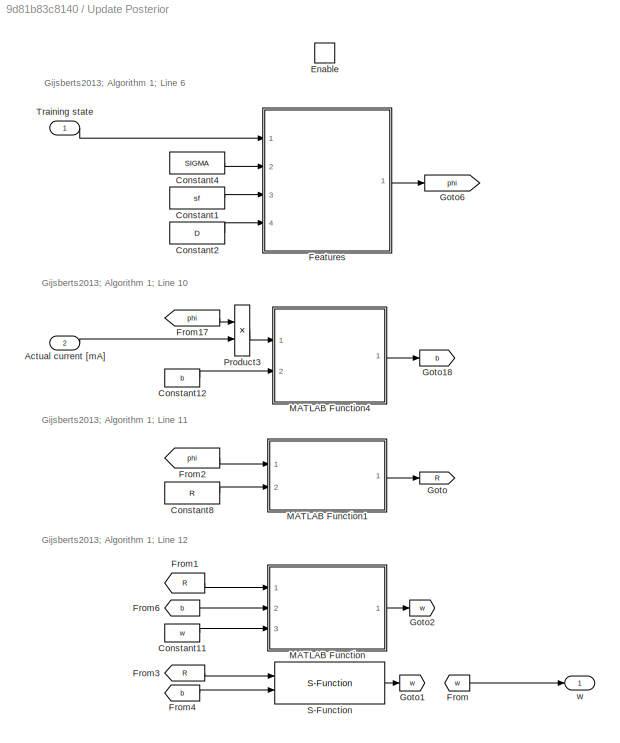
BLOCK [SubSystem] Update Posterior
  Ports = [2, 1, 1]
  RequestExecContextInheritance = off
BLOCK [Inport] Update Posterior/Actual current [mA] 
  IconDisplay = Port number
  Port = 2
BLOCK [Constant] Update Posterior/Constant1
  Value = sf
  VectorParams1D = off
BLOCK [Constant] Update Posterior/Constant11
  SampleTime = ts
  Value = w
  VectorParams1D = off
BLOCK [Constant] Update Posterior/Constant12
  SampleTime = ts
  Value = b
  VectorParams1D = off
BLOCK [Constant] Update Posterior/Constant2
  Value = D
  VectorParams1D = off
BLOCK [Constant] Update Posterior/Constant4
  Value = SIGMA
  VectorParams1D = off
BLOCK [Constant] Update Posterior/Constant8
  SampleTime = ts
  Value = R
  VectorParams1D = off
BLOCK [EnablePort] Update Posterior/Enable
  Ports = []
BLOCK [SubSystem] Update Posterior/Features
  Ports = [4, 1]
  RequestExecContextInheritance = off
BLOCK [Inport] Update Posterior/Features/D
  IconDisplay = Port number
  Port = 4
BLOCK [Product] Update Posterior/Features/Divide2
  InputSameDT = off
  Inputs = */
  OutDataTypeStr = Inherit: Inherit via internal rule
  Ports = [2, 1]
  RndMeth = Floor
  SaturateOnIntegerOverflow = off
BLOCK [Product] Update Posterior/Features/Product
  InputSameDT = off
  Multiplication = Matrix(*)
  OutDataTypeStr = Inherit: Inherit via internal rule
  Ports = [2, 1]
  RndMeth = Floor
  SaturateOnIntegerOverflow = off
BLOCK [Product] Update Posterior/Features/Product2
  InputSameDT = off
  OutDataTypeStr = Inherit: Inherit via internal rule
  Ports = [2, 1]
  RndMeth = Floor
  SaturateOnIntegerOverflow = off
BLOCK [Inport] Update Posterior/Features/SIGMA
  IconDisplay = Port number
  Port = 2
BLOCK [Sqrt] Update Posterior/Features/Sqrt
BLOCK [Math] Update Posterior/Features/Transpose2
  Operator = transpose
  Ports = [1, 1]
BLOCK [Math] Update Posterior/Features/Transpose3
  Operator = transpose
  Ports = [1, 1]
BLOCK [Math] Update Posterior/Features/Transpose4
  Operator = transpose
  Ports = [1, 1]
BLOCK [Trigonometry] Update Posterior/Features/Trigonometric Function
  Operator = cos
  Ports = [1, 1]
BLOCK [Trigonometry] Update Posterior/Features/Trigonometric Function1
  Ports = [1, 1]
BLOCK [Concatenate] Update Posterior/Features/Vector Concatenate1
  Ports = [2, 1]
BLOCK [Outport] Update Posterior/Features/phi_out
  IconDisplay = Port number
BLOCK [Inport] Update Posterior/Features/sf
  IconDisplay = Port number
  Port = 3
BLOCK [Inport] Update Posterior/Features/x
  IconDisplay = Port number
BLOCK [From] Update Posterior/From
  GotoTag = w
BLOCK [From] Update Posterior/From1
  GotoTag = R
BLOCK [From] Update Posterior/From17
  GotoTag = phi
BLOCK [From] Update Posterior/From2
  GotoTag = phi
BLOCK [From] Update Posterior/From3
  Commented = on
  GotoTag = R
BLOCK [From] Update Posterior/From4
  Commented = on
  GotoTag = b
BLOCK [From] Update Posterior/From6
  GotoTag = b
BLOCK [Goto] Update Posterior/Goto
  GotoTag = R
BLOCK [Goto] Update Posterior/Goto1
  Commented = on
  GotoTag = w
BLOCK [Goto] Update Posterior/Goto18
  GotoTag = b
BLOCK [Goto] Update Posterior/Goto2
  GotoTag = w
BLOCK [Goto] Update Posterior/Goto6
  GotoTag = phi
BLOCK [SubSystem] Update Posterior/MATLAB Function
  ErrorFcn = Stateflow.Translate.translate
  PermitHierarchicalResolution = ExplicitOnly
  Ports = [3, 1]
  RequestExecContextInheritance = off
  SFBlockType = MATLAB Function
  TreatAsAtomicUnit = on
BLOCK [Demux] Update Posterior/MATLAB Function/ Demux 
  Outputs = 1
  Ports = [1, 1]
BLOCK [S-Function] Update Posterior/MATLAB Function/ SFunction 
  EnableBusSupport = on
  FunctionName = sf_sfun
  PortCounts = [3 2]
  Ports = [3, 2]
  SFcnIsStateOwnerBlock = off
  SFunctionDeploymentMode = off
  Tag = Stateflow S-Function TFlex_PID_referenced 2
BLOCK [Terminator] Update Posterior/MATLAB Function/ Terminator 
BLOCK [Inport] Update Posterior/MATLAB Function/R
  IconDisplay = Port number
BLOCK [Inport] Update Posterior/MATLAB Function/b
  IconDisplay = Port number
  Port = 2
BLOCK [Inport] Update Posterior/MATLAB Function/w_init
  IconDisplay = Port number
  Port = 3
BLOCK [Outport] Update Posterior/MATLAB Function/w_out
  IconDisplay = Port number
BLOCK [SubSystem] Update Posterior/MATLAB Function1
  ErrorFcn = Stateflow.Translate.translate
  PermitHierarchicalResolution = ExplicitOnly
  Ports = [2, 1]
  RequestExecContextInheritance = off
  SFBlockType = MATLAB Function
  TreatAsAtomicUnit = on
BLOCK [Demux] Update Posterior/MATLAB Function1/ Demux 
  Outputs = 1
  Ports = [1, 1]
BLOCK [S-Function] Update Posterior/MATLAB Function1/ SFunction 
  EnableBusSupport = on
  FunctionName = sf_sfun
  PortCounts = [2 2]
  Ports = [2, 2]
  SFcnIsStateOwnerBlock = off
  SFunctionDeploymentMode = off
  Tag = Stateflow S-Function TFlex_PID_referenced 6
BLOCK [Terminator] Update Posterior/MATLAB Function1/ Terminator 
BLOCK [Inport] Update Posterior/MATLAB Function1/R_init
  IconDisplay = Port number
  Port = 2
BLOCK [Outport] Update Posterior/MATLAB Function1/R_out
  IconDisplay = Port number
BLOCK [Inport] Update Posterior/MATLAB Function1/phi
  IconDisplay = Port number
BLOCK [SubSystem] Update Posterior/MATLAB Function4
  ErrorFcn = Stateflow.Translate.translate
  PermitHierarchicalResolution = ExplicitOnly
  Ports = [2, 1]
  RequestExecContextInheritance = off
  SFBlockType = MATLAB Function
  TreatAsAtomicUnit = on
BLOCK [Demux] Update Posterior/MATLAB Function4/ Demux 
  Outputs = 1
  Ports = [1, 1]
BLOCK [S-Function] Update Posterior/MATLAB Function4/ SFunction 
  EnableBusSupport = on
  FunctionName = sf_sfun
  PortCounts = [2 2]
  Ports = [2, 2]
  SFcnIsStateOwnerBlock = off
  SFunctionDeploymentMode = off
  Tag = Stateflow S-Function TFlex_PID_referenced 8
BLOCK [Terminator] Update Posterior/MATLAB Function4/ Terminator 
BLOCK [Inport] Update Posterior/MATLAB Function4/b_init
  IconDisplay = Port number
  Port = 2
BLOCK [Outport] Update Posterior/MATLAB Function4/b_out
  IconDisplay = Port number
BLOCK [Inport] Update Posterior/MATLAB Function4/update
  IconDisplay = Port number
BLOCK [Product] Update Posterior/Product3
  InputSameDT = off
  OutDataTypeStr = Inherit: Inherit via internal rule
  Ports = [2, 1]
  RndMeth = Floor
  SaturateOnIntegerOverflow = off
BLOCK [S-Function] Update Posterior/S-Function
  Commented = on
  EnableBusSupport = off
  FunctionName = solve_chol_sfun
  Parameters = 2*D
  Ports = [2, 1]
  SFcnIsStateOwnerBlock = off
  SFunctionDeploymentMode = off
BLOCK [Inport] Update Posterior/Training state
  IconDisplay = Port number
BLOCK [Outport] Update Posterior/w
  IconDisplay = Port number
BLOCK [Display] Warnings
  Decimation = 25
  Ports = [1]
BLOCK [Constant] Zero
  Value = 0
BLOCK [Constant] Zero1
  SampleTime = ts
  Value = 0
BLOCK [LampBlock] [Reset required] Fault (f)1 
  LabelPosition = Hide
  WebBlockId = 1382
BLOCK [LampBlock] da3
  LabelPosition = Hide
  WebBlockId = 1377
BLOCK [LampBlock] eb2
  LabelPosition = Hide
  WebBlockId = 1406
BLOCK [LampBlock] eb3
  LabelPosition = Hide
  WebBlockId = 1407
BLOCK [LampBlock] f2
  LabelPosition = Hide
  WebBlockId = 1378
BLOCK [LampBlock] f3
  LabelPosition = Hide
  WebBlockId = 1383
BLOCK [LampBlock] pil2
  LabelPosition = Hide
  WebBlockId = 1396
BLOCK [LampBlock] pil3
  LabelPosition = Hide
  WebBlockId = 1401
BLOCK [LampBlock] rso2
  LabelPosition = Hide
  WebBlockId = 1323
BLOCK [LampBlock] rso3
  LabelPosition = Hide
  WebBlockId = 1324
BLOCK [LampBlock] rso5
  LabelPosition = Hide
  WebBlockId = 1326
BLOCK [LampBlock] rso6
  LabelPosition = Hide
  WebBlockId = 1327
BLOCK [LampBlock] so3
  LabelPosition = Hide
  WebBlockId = 1337
ANNOTATION (root): Adaptive Feed Forward - Prediction
ANNOTATION (root): Adaptive Feed Forward - Training
ANNOTATION (root): Driver
ANNOTATION (root): GP Feed Forward
ANNOTATION (root): Status
ANNOTATION Gaussian process regression: Gijsberts2013; Algorithm 1; Line 6
ANNOTATION Gaussian process regression: Gijsberts2013; Algorithm 1; Line 7
ANNOTATION Gaussian process regression: Slowly turn on prediction
ANNOTATION PID : Controller On/Off
ANNOTATION PID : Parallel form
ANNOTATION PID : Serial form
ANNOTATION PID : Slowly increase the error
ANNOTATION Update Posterior: Gijsberts2013; Algorithm 1; Line 10
ANNOTATION Update Posterior: Gijsberts2013; Algorithm 1; Line 11
ANNOTATION Update Posterior: Gijsberts2013; Algorithm 1; Line 12
ANNOTATION Update Posterior: Gijsberts2013; Algorithm 1; Line 6
LINE Bus Creator10:1 -> Scope 1:1
LINE Bus Creator11:1 -> Scope 7:1
LINE Bus Creator12:1 -> Scope 9:1
NET Bus Creator13:1 -> Goto7:1, PID :2
NET Bus Creator15:1 -> Delay1:1, Goto5:1
LINE Bus Creator16:1 -> Goto6:1
LINE Bus Creator1:1 -> Terminator:1
LINE Bus Creator2:1 -> Terminator1:1
LINE Bus Creator3:1 -> Terminator2:1
LINE Bus Creator4:1 -> Terminator3:1
NET Bus Creator5:1 -> Goto4:1, Sum1:2
LINE Bus Creator6:1 -> Terminator5:1
LINE Bus Creator7:1 -> Terminator6:1
LINE Bus Creator8:1 -> Scope 6:1
LINE Bus Creator:1 -> Scope 3:1
NET Bus Selector10:1 -> Goto12:1, Update Posterior:2
LINE Bus Selector11:1 -> State Variable filter:1
LINE Bus Selector12:1 -> Delay:1
LINE Bus Selector13:1 -> Bus Creator8:2
LINE Bus Selector14:1 -> Bus Creator8:3
LINE Bus Selector15:1 -> Bus Creator10:3
LINE Bus Selector15:2 -> Bus Creator10:4
LINE Bus Selector16:1 -> Bus Creator10:1
LINE Bus Selector16:2 -> Bus Creator10:2
LINE Bus Selector17:1 -> Bus Creator11:1
LINE Bus Selector17:2 -> Bus Creator11:2
LINE Bus Selector17:3 -> Bus Creator11:3
LINE Bus Selector18:1 -> Bus Creator12:3
LINE Bus Selector19:1 -> Bus Creator12:1
LINE Bus Selector20:1 -> Scope 2:1
LINE Bus Selector6:1 -> Bus Creator:1
LINE Bus Selector6:2 -> Bus Creator:2
LINE Bus Selector9:1 -> Bus Creator:3
LINE Bus Selector9:2 -> Bus Creator:4
LINE Delay1:1 -> Sum1:1
LINE Delay3:1 -> IC:1
LINE Delay:1 -> State Variable filter1:1
LINE Demux10:1 -> Bus Creator14:1
LINE Demux10:2 -> Bus Creator14:2
LINE Demux10:3 -> Bus Creator14:3
LINE Demux10:4 -> Bus Creator14:4
LINE Demux10:5 -> Bus Creator14:5
LINE Demux10:6 -> Bus Creator14:6
LINE Demux11:1 -> Bus Creator15:1
LINE Demux11:2 -> Bus Creator15:2
LINE Demux11:3 -> Bus Creator15:3
LINE Demux11:4 -> Bus Creator15:4
LINE Demux11:5 -> Bus Creator15:5
LINE Demux11:6 -> Bus Creator15:6
LINE Demux12:1 -> Bus Creator16:1
LINE Demux12:2 -> Bus Creator16:2
LINE Demux12:3 -> Bus Creator16:3
LINE Demux12:4 -> Bus Creator16:4
LINE Demux12:5 -> Bus Creator16:5
LINE Demux12:6 -> Bus Creator16:6
LINE Demux1:1 -> Demux3:1
LINE Demux1:2 -> Demux5:1
LINE Demux1:3 -> Demux6:1
LINE Demux1:4 -> Demux7:1
LINE Demux1:5 -> Demux8:1
LINE Demux1:6 -> Demux9:1
LINE Demux2:1 -> Bus Creator5:1
LINE Demux2:2 -> Bus Creator5:2
LINE Demux2:3 -> Bus Creator5:3
LINE Demux2:4 -> Bus Creator5:4
LINE Demux3:1 -> Bus Creator1:1
LINE Demux3:2 -> Bus Creator1:2
LINE Demux3:3 -> Bus Creator1:3
LINE Demux3:4 -> Bus Creator1:4
LINE Demux3:5 -> Bus Creator1:5
LINE Demux3:6 -> Bus Creator1:6
LINE Demux4:1 -> Bus Creator13:1
LINE Demux4:2 -> Bus Creator13:2
LINE Demux4:3 -> Bus Creator13:3
LINE Demux4:4 -> Bus Creator13:4
LINE Demux4:5 -> Bus Creator13:5
LINE Demux4:6 -> Bus Creator13:6
LINE Demux5:1 -> Bus Creator2:1
LINE Demux5:2 -> Bus Creator2:2
LINE Demux5:3 -> Bus Creator2:3
LINE Demux5:4 -> Bus Creator2:4
LINE Demux5:5 -> Bus Creator2:5
LINE Demux5:6 -> Bus Creator2:6
LINE Demux6:1 -> Bus Creator3:1
LINE Demux6:2 -> Bus Creator3:2
LINE Demux6:3 -> Bus Creator3:3
LINE Demux6:4 -> Bus Creator3:4
LINE Demux6:5 -> Bus Creator3:5
LINE Demux6:6 -> Bus Creator3:6
LINE Demux7:1 -> Bus Creator4:1
LINE Demux7:2 -> Bus Creator4:2
LINE Demux7:3 -> Bus Creator4:3
LINE Demux7:4 -> Bus Creator4:4
LINE Demux7:5 -> Bus Creator4:5
LINE Demux7:6 -> Bus Creator4:6
LINE Demux8:1 -> Bus Creator6:1
LINE Demux8:2 -> Bus Creator6:2
LINE Demux8:3 -> Bus Creator6:3
LINE Demux8:4 -> Bus Creator6:4
LINE Demux8:5 -> Bus Creator6:5
LINE Demux8:6 -> Bus Creator6:6
LINE Demux9:1 -> Bus Creator7:1
LINE Demux9:2 -> Bus Creator7:2
LINE Demux9:3 -> Bus Creator7:3
LINE Demux9:4 -> Bus Creator7:4
LINE Demux9:5 -> Bus Creator7:5
LINE Demux9:6 -> Bus Creator7:6
LINE From Workspace2:1 -> Bus Creator5:5
NET From Workspace3:1 -> Gaussian process regression:2, Goto8:1
LINE From10:1 -> Bus Selector11:1
LINE From11:1 -> Bus Selector13:1
LINE From12:1 -> Bus Selector15:1
LINE From13:1 -> Bus Creator8:1
LINE From14:1 -> Bus Selector19:1
LINE From15:1 -> Bus Selector14:1
LINE From16:1 -> Scope 5:1
LINE From17:1 -> Scope 4:1
LINE From18:1 -> Bus Selector17:1
LINE From19:1 -> Bus Creator11:4
LINE From1:1 -> Warnings:1
LINE From20:1 -> Bus Selector12:1
LINE From21:1 -> Bus Selector18:1
LINE From22:1 -> Bus Creator12:2
LINE From2:1 -> Errors:1
LINE From3:1 -> Temperature:1
LINE From4:1 -> Bus Selector6:1
LINE From5:1 -> Bus Selector9:1
LINE From6:1 -> Scope :1
LINE From7:1 -> Bus Selector16:1
LINE From8:1 -> Bus Selector20:1
LINE From9:1 -> Gaussian process regression:1
LINE From:1 -> Demux1:1
NET Gain1:1 -> Goto9:1, Mux2:5
LINE Gaussian process regression/Constant1:1 -> Gaussian process regression/Features:3
LINE Gaussian process regression/Constant3:1 -> Gaussian process regression/Features:4
LINE Gaussian process regression/Constant4:1 -> Gaussian process regression/Features:2
LINE Gaussian process regression/Discrete-Time Integrator:1 -> Gaussian process regression/Saturation1:1
LINE Gaussian process regression/Dot Product:1 -> Gaussian process regression/Goto2:1
LINE Gaussian process regression/Features/D:1 -> Gaussian process regression/Features/Sqrt:1
LINE Gaussian process regression/Features/Divide2:1 -> Gaussian process regression/Features/Product2:1
LINE Gaussian process regression/Features/Product2:1 -> Gaussian process regression/Features/phi_out:1
NET Gaussian process regression/Features/Product:1 -> Gaussian process regression/Features/Trigonometric Function1:1, Gaussian process regression/Features/Trigonometric Function:1
LINE Gaussian process regression/Features/SIGMA:1 -> Gaussian process regression/Features/Product:1
LINE Gaussian process regression/Features/Sqrt:1 -> Gaussian process regression/Features/Divide2:2
LINE Gaussian process regression/Features/Transpose2:1 -> Gaussian process regression/Features/Vector Concatenate1:1
LINE Gaussian process regression/Features/Transpose3:1 -> Gaussian process regression/Features/Vector Concatenate1:2
LINE Gaussian process regression/Features/Transpose4:1 -> Gaussian process regression/Features/Product2:2
LINE Gaussian process regression/Features/Trigonometric Function1:1 -> Gaussian process regression/Features/Transpose3:1
LINE Gaussian process regression/Features/Trigonometric Function:1 -> Gaussian process regression/Features/Transpose2:1
LINE Gaussian process regression/Features/Vector Concatenate1:1 -> Gaussian process regression/Features/Transpose4:1
LINE Gaussian process regression/Features/sf:1 -> Gaussian process regression/Features/Divide2:1
LINE Gaussian process regression/Features/x:1 -> Gaussian process regression/Features/Product:2
LINE Gaussian process regression/Features:1 -> Gaussian process regression/Goto1:1
LINE Gaussian process regression/From5:1 -> Gaussian process regression/Dot Product:2
LINE Gaussian process regression/From:1 -> Gaussian process regression/Product1:1
LINE Gaussian process regression/Prediction On//off:1 -> Gaussian process regression/slope:1
LINE Gaussian process regression/Product1:1 -> Gaussian process regression/FF_adapt:1
LINE Gaussian process regression/Saturation1:1 -> Gaussian process regression/Product1:2
LINE Gaussian process regression/Training state:1 -> Gaussian process regression/Features:1
LINE Gaussian process regression/slope:1 -> Gaussian process regression/Discrete-Time Integrator:1
LINE Gaussian process regression/w:1 -> Gaussian process regression/Dot Product:1
LINE Gaussian process regression:1 -> Multiply:2
LINE IC:1 -> Goto w1:1
LINE Inactive // active:1 -> Sum:3
LINE Learning On//off:1 -> Update Posterior:enable
LINE Model:1 -> Demux11:1
LINE Model:2 -> Goto3:1
LINE Model:3 -> Goto:1
LINE Model:4 -> Goto1:1
LINE Model:5 -> Goto2:1
LINE Model:6 -> Demux12:1
LINE Multiply:1 -> Gain1:1
LINE Mux2:1 -> Sum2:1
LINE Mux:1 -> Demux2:1
LINE Off // On:1 -> Sum:2
LINE On//off:1 -> PID :1
LINE PID /Activation function/Constant2:1 -> PID /Activation function/Sum:2
LINE PID /Activation function/Constant:1 -> PID /Activation function/Sum3:2
LINE PID /Activation function/Discrete-Time Integrator3:1 -> PID /Activation function/Sum1:2
LINE PID /Activation function/Divide:1 -> PID /Activation function/Sum2:2
LINE PID /Activation function/Exp:1 -> PID /Activation function/Sum:1
LINE PID /Activation function/Gain1:1 -> PID /Activation function/Sum2:1
LINE PID /Activation function/Gain:1 -> PID /Activation function/Exp:1
LINE PID /Activation function/Multiply:1 -> PID /Activation function/Saturation:1
LINE PID /Activation function/Saturation:1 -> PID /Activation function/Activation Signal:1
LINE PID /Activation function/Sum1:1 -> PID /Activation function/Gain:1
LINE PID /Activation function/Sum2:1 -> PID /Activation function/Multiply:1
LINE PID /Activation function/Sum3:1 -> PID /Activation function/Divide:1
LINE PID /Activation function/Sum:1 -> PID /Activation function/Divide:2
NET PID /Activation function/Switch:1 -> PID /Activation function/Discrete-Time Integrator3:2, PID /Activation function/Multiply:2
NET PID /Activation function/additional amplitude:1 -> PID /Activation function/Gain1:1, PID /Activation function/Sum3:1
LINE PID /Activation function/horizontal offset:1 -> PID /Activation function/Sum1:1
LINE PID /Activation function/slope:1 -> PID /Activation function/Discrete-Time Integrator3:1
LINE PID /Activation function:1 -> PID /Multiply1:1
LINE PID /Bus Creator:1 -> PID /output:1
LINE PID /Demux:1 -> PID /Gain9:1
LINE PID /Demux:2 -> PID /Gain8:1
LINE PID /Demux:3 -> PID /Gain7:1
LINE PID /Demux:4 -> PID /Gain6:1
LINE PID /Demux:5 -> PID /Gain5:1
LINE PID /Demux:6 -> PID /Gain4:1
LINE PID /Discrete Derivative:1 -> PID /Gain3:1
NET PID /Discrete-Time Integrator1:1 -> PID /Sum:2, PID /ki:1, PID /kp:1
LINE PID /Discrete-Time Integrator2:1 -> PID /Sum1:3
LINE PID /Discrete-Time Integrator:1 -> PID /Gain1:1
LINE PID /From1:1 -> PID /Multiply2:2
NET PID /From2:1 -> PID /Discrete-Time Integrator:1, PID /Gain2:1, PID /LowPass:1
NET PID /From3:1 -> PID /Discrete-Time Integrator2:2, PID /Multiply:2
LINE PID /From4:1 -> PID /Sum:1
LINE PID /From6:1 -> PID /Multiply2:1
LINE PID /From:1 -> PID /Discrete-Time Integrator:2
NET PID /Gain1:1 -> PID /Saturation:1, PID /Scope1:1
NET PID /Gain2:1 -> PID /Scope1:2, PID /Sum2:2
NET PID /Gain3:1 -> PID /Scope1:3, PID /Sum2:3
LINE PID /Gain4:1 -> PID /Bus Creator:6
LINE PID /Gain5:1 -> PID /Bus Creator:5
LINE PID /Gain6:1 -> PID /Bus Creator:4
LINE PID /Gain7:1 -> PID /Bus Creator:3
LINE PID /Gain8:1 -> PID /Bus Creator:2
LINE PID /Gain9:1 -> PID /Bus Creator:1
NET PID /Gain:1 -> PID /Discrete-Time Integrator1:1, PID /kd:1
LINE PID /LowPass:1 -> PID /Discrete Derivative:1
LINE PID /Multiply1:1 -> PID /Goto1:1
LINE PID /Multiply2:1 -> PID /Demux:1
LINE PID /Multiply:1 -> PID /Goto2:1
LINE PID /Saturation1:1 -> PID /Goto3:1
LINE PID /Saturation2:1 -> PID /Multiply:1
LINE PID /Saturation:1 -> PID /Sum2:1
LINE PID /Sum1:1 -> PID /Saturation2:1
LINE PID /Sum2:1 -> PID /Saturation1:1
LINE PID /Sum:1 -> PID /Gain:1
LINE PID /error:1 -> PID /Multiply1:2
LINE PID /kd:1 -> PID /Sum1:1
LINE PID /ki:1 -> PID /Discrete-Time Integrator2:1
LINE PID /kp:1 -> PID /Sum1:2
NET PID /switch:1 -> PID /Activation function:1, PID /Goto:1
NET PID :1 -> Goto10:1, Sum2:2
NET Prediction On//off:1 -> Gaussian process regression:enable, Multiply:1
LINE Reset drive:1 -> Sum:1
LINE State Variable filter/Angle:1 -> State Variable filter/Sum:1
LINE State Variable filter/Bus Creator:1 -> State Variable filter/Filtered state:1
NET State Variable filter/Discrete-Time Integrator1:1 -> State Variable filter/Discrete-Time Integrator2:1, State Variable filter/Gain1:1, State Variable filter/Gain4:1
NET State Variable filter/Discrete-Time Integrator2:1 -> State Variable filter/Gain3:1, State Variable filter/Gain:1
NET State Variable filter/Discrete-Time Integrator:1 -> State Variable filter/Discrete-Time Integrator1:1, State Variable filter/Gain2:1, State Variable filter/Gain5:1
LINE State Variable filter/Gain1:1 -> State Variable filter/Sum5:2
LINE State Variable filter/Gain2:1 -> State Variable filter/Bus Creator:3
LINE State Variable filter/Gain3:1 -> State Variable filter/Bus Creator:1
LINE State Variable filter/Gain4:1 -> State Variable filter/Bus Creator:2
LINE State Variable filter/Gain5:1 -> State Variable filter/Sum1:2
LINE State Variable filter/Gain:1 -> State Variable filter/Sum:2
LINE State Variable filter/Sum1:1 -> State Variable filter/Discrete-Time Integrator:1
LINE State Variable filter/Sum5:1 -> State Variable filter/Sum1:1
LINE State Variable filter/Sum:1 -> State Variable filter/Sum5:1
LINE State Variable filter1/Bus Creator:1 -> State Variable filter1/Filtered state:1
LINE State Variable filter1/Current:1 -> State Variable filter1/Sum:1
NET State Variable filter1/Discrete-Time Integrator1:1 -> State Variable filter1/Discrete-Time Integrator2:1, State Variable filter1/Gain1:1, State Variable filter1/Gain4:1
NET State Variable filter1/Discrete-Time Integrator2:1 -> State Variable filter1/Gain3:1, State Variable filter1/Gain:1
NET State Variable filter1/Discrete-Time Integrator:1 -> State Variable filter1/Discrete-Time Integrator1:1, State Variable filter1/Gain2:1, State Variable filter1/Gain5:1
LINE State Variable filter1/Gain1:1 -> State Variable filter1/Sum5:2
LINE State Variable filter1/Gain2:1 -> State Variable filter1/Bus Creator:3
LINE State Variable filter1/Gain3:1 -> State Variable filter1/Bus Creator:1
LINE State Variable filter1/Gain4:1 -> State Variable filter1/Bus Creator:2
LINE State Variable filter1/Gain5:1 -> State Variable filter1/Sum1:2
LINE State Variable filter1/Gain:1 -> State Variable filter1/Sum:2
LINE State Variable filter1/Sum1:1 -> State Variable filter1/Discrete-Time Integrator:1
LINE State Variable filter1/Sum5:1 -> State Variable filter1/Sum1:1
LINE State Variable filter1/Sum:1 -> State Variable filter1/Sum5:1
LINE State Variable filter1:1 -> Bus Selector10:1
NET State Variable filter:1 -> Goto13:1, Update Posterior:1
LINE Sum1:1 -> Demux4:1
NET Sum2:1 -> Goto11:1, Model:1
LINE Sum:1 -> Model:2
LINE Update Posterior/Actual current [mA] :1 -> Update Posterior/Product3:2
LINE Update Posterior/Constant11:1 -> Update Posterior/MATLAB Function:3
LINE Update Posterior/Constant12:1 -> Update Posterior/MATLAB Function4:2
LINE Update Posterior/Constant1:1 -> Update Posterior/Features:3
LINE Update Posterior/Constant2:1 -> Update Posterior/Features:4
LINE Update Posterior/Constant4:1 -> Update Posterior/Features:2
LINE Update Posterior/Constant8:1 -> Update Posterior/MATLAB Function1:2
LINE Update Posterior/Features/D:1 -> Update Posterior/Features/Sqrt:1
LINE Update Posterior/Features/Divide2:1 -> Update Posterior/Features/Product2:1
LINE Update Posterior/Features/Product2:1 -> Update Posterior/Features/phi_out:1
NET Update Posterior/Features/Product:1 -> Update Posterior/Features/Trigonometric Function1:1, Update Posterior/Features/Trigonometric Function:1
LINE Update Posterior/Features/SIGMA:1 -> Update Posterior/Features/Product:1
LINE Update Posterior/Features/Sqrt:1 -> Update Posterior/Features/Divide2:2
LINE Update Posterior/Features/Transpose2:1 -> Update Posterior/Features/Vector Concatenate1:1
LINE Update Posterior/Features/Transpose3:1 -> Update Posterior/Features/Vector Concatenate1:2
LINE Update Posterior/Features/Transpose4:1 -> Update Posterior/Features/Product2:2
LINE Update Posterior/Features/Trigonometric Function1:1 -> Update Posterior/Features/Transpose3:1
LINE Update Posterior/Features/Trigonometric Function:1 -> Update Posterior/Features/Transpose2:1
LINE Update Posterior/Features/Vector Concatenate1:1 -> Update Posterior/Features/Transpose4:1
LINE Update Posterior/Features/sf:1 -> Update Posterior/Features/Divide2:1
LINE Update Posterior/Features/x:1 -> Update Posterior/Features/Product:2
LINE Update Posterior/Features:1 -> Update Posterior/Goto6:1
LINE Update Posterior/From17:1 -> Update Posterior/Product3:1
LINE Update Posterior/From1:1 -> Update Posterior/MATLAB Function:1
LINE Update Posterior/From2:1 -> Update Posterior/MATLAB Function1:1
LINE Update Posterior/From3:1 -> Update Posterior/S-Function:1
LINE Update Posterior/From4:1 -> Update Posterior/S-Function:2
LINE Update Posterior/From6:1 -> Update Posterior/MATLAB Function:2
LINE Update Posterior/From:1 -> Update Posterior/w:1
LINE Update Posterior/MATLAB Function1:1 -> Update Posterior/Goto:1
LINE Update Posterior/MATLAB Function4:1 -> Update Posterior/Goto18:1
LINE Update Posterior/MATLAB Function:1 -> Update Posterior/Goto2:1
LINE Update Posterior/Product3:1 -> Update Posterior/MATLAB Function4:1
LINE Update Posterior/S-Function:1 -> Update Posterior/Goto1:1
LINE Update Posterior/Training state:1 -> Update Posterior/Features:1
LINE Update Posterior:1 -> Delay3:1
NET Zero1:1 -> Bus Creator5:6, Mux:1, Mux:2, Mux:3, Mux:4
NET Zero:1 -> Mux2:1, Mux2:2, Mux2:3, Mux2:4, Mux2:6
note: NET lines group one-source signal fan-out (src -> all destinations, sorted); 1:1 wires keep LINE
CHART Update Posterior/MATLAB Function states=1 transitions=1
  STATE_LABEL 'eML_blk_kernel()'
  STATE_LABEL "SCRIPT:\nfunction w_out = updateW(R,b,w_init)\npersistent w\nif(isempty(w))\n    w = w_init;\nend\n%coder.extrinsic('solve_chol');\n%w = solve_chol(R,b);\nw = R\\(R'\\b);\nw_out = w;\n\n"
CHART Update Posterior/MATLAB Function1 states=1 transitions=1
  STATE_LABEL 'eML_blk_kernel()'
  STATE_LABEL 'SCRIPT:\nfunction R_out = cholupdate_fcn(phi,R_init)\npersistent R; \nif(isempty(R))\n    R = R_init;\nend\nR = cholupdate(R,phi);\nR_out = R;'
CHART Update Posterior/MATLAB Function4 states=1 transitions=1
  STATE_LABEL 'eML_blk_kernel()'
  STATE_LABEL 'SCRIPT:\nfunction b_out = updateB(update, b_init)\npersistent b \nif(isempty(b))\n    b = b_init;\nend\n\nb = b + update;\nb_out = b;\n'
